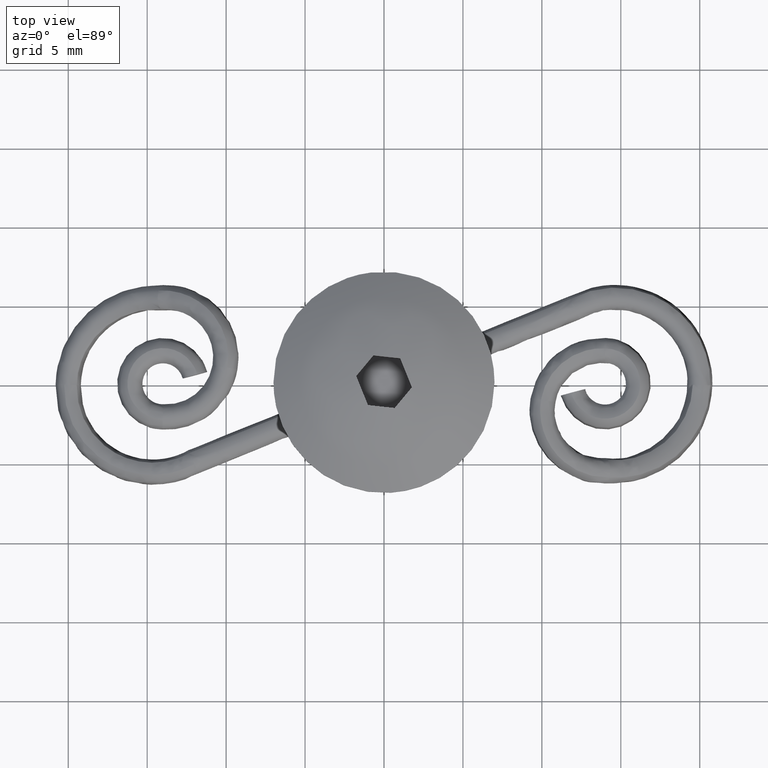
[diagram: clean part render]
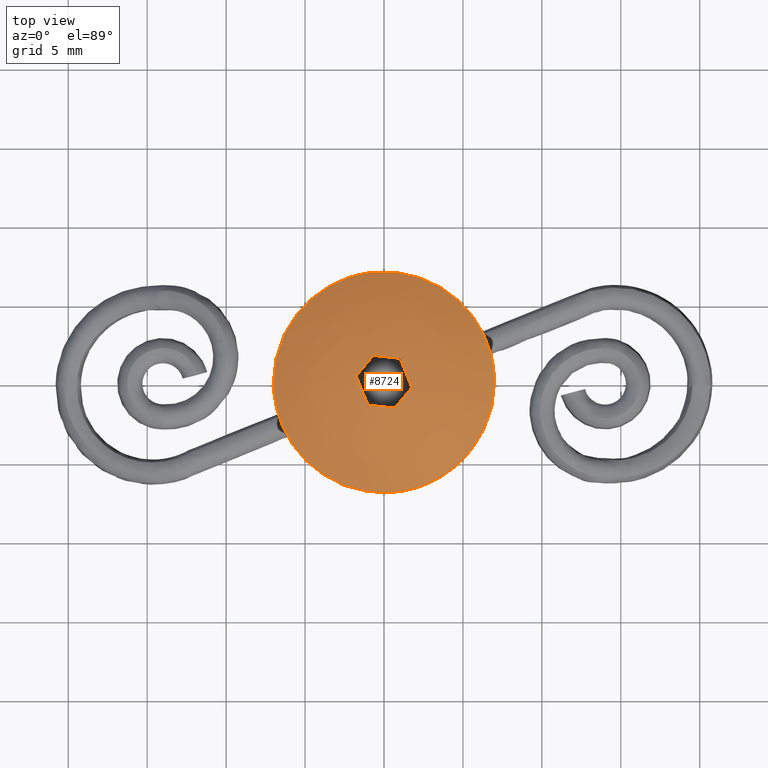
[diagram: same view with one face highlighted and labeled with its STEP entity id]
A machine part, top view. The second image highlights one B-rep face of the part: STEP entity #8724.
In plain terms, the highlighted face is a freeform B-spline surface patch.
Its self-contained STEP definition (entity closure, byte-faithful):
#6360=CARTESIAN_POINT('',(-0.826228462110417,6.951070027576363,8.914991785359719));
#6361=VERTEX_POINT('',#6360);
#6367=CARTESIAN_POINT('',(7.000002000000000,0.0,8.914991785359719));
#6368=VERTEX_POINT('',#6367);
#6369=CARTESIAN_POINT('',(-0.826228462110417,6.951070027576363,8.914991785359719));
#6370=CARTESIAN_POINT('',(-0.414563187388153,7.000002000000000,8.914991785359719));
#6371=CARTESIAN_POINT('',(0.0,7.000002000000000,8.914991785359719));
#6372=CARTESIAN_POINT('',(7.000002000000000,7.000002000000000,8.914991785359719));
#6373=CARTESIAN_POINT('',(7.000002000000000,0.0,8.914991785359719));
#6381=(BOUNDED_CURVE()B_SPLINE_CURVE(2,(#6369,#6370,#6371,#6372,#6373),.UNSPECIFIED.,.F.,.U.)B_SPLINE_CURVE_WITH_KNOTS((3,2,3),(0.229562751089529,0.250000000000000,0.500000000000000),.UNSPECIFIED.)CURVE()GEOMETRIC_REPRESENTATION_ITEM()RATIONAL_B_SPLINE_CURVE((0.956027298244782,0.976056273531682,1.0,0.707106781186548,1.0))REPRESENTATION_ITEM(''));
#6382=EDGE_CURVE('',#6361,#6368,#6381,.T.);
#6384=CARTESIAN_POINT('',(0.427335432959754,-6.986945858364803,8.914991785359719));
#6385=VERTEX_POINT('',#6384);
#6386=CARTESIAN_POINT('',(7.000002000000000,0.0,8.914991785359719));
#6387=CARTESIAN_POINT('',(7.000002000000000,-6.584948566550439,8.914991785359719));
#6388=CARTESIAN_POINT('',(0.427335432959754,-6.986945858364803,8.914991785359719));
#6396=(BOUNDED_CURVE()B_SPLINE_CURVE(2,(#6386,#6387,#6388),.UNSPECIFIED.,.F.,.U.)B_SPLINE_CURVE_WITH_KNOTS((3,3),(0.500000000000000,0.739333072529581),.UNSPECIFIED.)CURVE()GEOMETRIC_REPRESENTATION_ITEM()RATIONAL_B_SPLINE_CURVE((1.0,0.719603864073190,0.976072278040664))REPRESENTATION_ITEM(''));
#6397=EDGE_CURVE('',#6368,#6385,#6396,.T.);
#6475=CARTESIAN_POINT('',(-7.000002000000000,0.0,8.914991785359719));
#6476=VERTEX_POINT('',#6475);
#6477=CARTESIAN_POINT('',(0.427335432959754,-6.986945858364803,8.914991785359719));
#6478=CARTESIAN_POINT('',(0.213867164994148,-7.000002000000000,8.914991785359719));
#6479=CARTESIAN_POINT('',(0.0,-7.000002000000000,8.914991785359719));
#6480=CARTESIAN_POINT('',(-7.000002000000000,-7.000002000000000,8.914991785359719));
#6481=CARTESIAN_POINT('',(-7.000002000000000,0.0,8.914991785359719));
#6489=(BOUNDED_CURVE()B_SPLINE_CURVE(2,(#6477,#6478,#6479,#6480,#6481),.UNSPECIFIED.,.F.,.U.)B_SPLINE_CURVE_WITH_KNOTS((3,2,3),(0.739333072529581,0.750000000000000,1.0),.UNSPECIFIED.)CURVE()GEOMETRIC_REPRESENTATION_ITEM()RATIONAL_B_SPLINE_CURVE((0.976072278040664,0.987502917113358,1.0,0.707106781186548,1.0))REPRESENTATION_ITEM(''));
#6490=EDGE_CURVE('',#6385,#6476,#6489,.T.);
#6492=CARTESIAN_POINT('',(-7.000002000000000,0.0,8.914991785359719));
#6493=CARTESIAN_POINT('',(-7.000002000000000,6.217233741173570,8.914991785359719));
#6494=CARTESIAN_POINT('',(-0.826228462110417,6.951070027576363,8.914991785359719));
#6502=(BOUNDED_CURVE()B_SPLINE_CURVE(2,(#6492,#6493,#6494),.UNSPECIFIED.,.F.,.U.)B_SPLINE_CURVE_WITH_KNOTS((3,3),(0.0,0.229562751089529),.UNSPECIFIED.)CURVE()GEOMETRIC_REPRESENTATION_ITEM()RATIONAL_B_SPLINE_CURVE((1.0,0.731050507654866,0.956027298244782))REPRESENTATION_ITEM(''));
#6503=EDGE_CURVE('',#6476,#6361,#6502,.T.);
#8481=CARTESIAN_POINT('',(1.763513492046960,-0.360631526051891,10.830058453794120));
#8482=VERTEX_POINT('',#8481);
#8483=CARTESIAN_POINT('',(1.018055489983010,1.484440929750002,10.830059619934140));
#8484=VERTEX_POINT('',#8483);
#8485=CARTESIAN_POINT('',(1.763513492046958,-0.360631526051891,10.830058453794120));
#8486=CARTESIAN_POINT('',(1.390784507855683,0.561904660166883,10.906774236152854));
#8487=CARTESIAN_POINT('',(1.018055489983010,1.484440929750002,10.830059619934140));
#8495=(BOUNDED_CURVE()B_SPLINE_CURVE(2,(#8485,#8486,#8487),.UNSPECIFIED.,.F.,.U.)CURVE()GEOMETRIC_REPRESENTATION_ITEM()QUASI_UNIFORM_CURVE()RATIONAL_B_SPLINE_CURVE((1.0,0.997040852602830,1.0))REPRESENTATION_ITEM(''));
#8496=EDGE_CURVE('',#8482,#8484,#8495,.T.);
#8517=CARTESIAN_POINT('',(0.674300932120085,-1.668936240449005,10.830058479196220));
#8518=VERTEX_POINT('',#8517);
#8519=CARTESIAN_POINT('',(0.674300932120084,-1.668936240449005,10.830058479196230));
#8520=CARTESIAN_POINT('',(1.218907212619528,-1.014783882606624,10.886200922787724));
#8521=CARTESIAN_POINT('',(1.763513492046960,-0.360631526051890,10.830058453794120));
#8529=(BOUNDED_CURVE()B_SPLINE_CURVE(2,(#8519,#8520,#8521),.UNSPECIFIED.,.F.,.U.)CURVE()GEOMETRIC_REPRESENTATION_ITEM()QUASI_UNIFORM_CURVE()RATIONAL_B_SPLINE_CURVE((1.0,0.997831829504810,1.0))REPRESENTATION_ITEM(''));
#8530=EDGE_CURVE('',#8518,#8482,#8529,.T.);
#8547=CARTESIAN_POINT('',(-1.018037892914166,-1.484451748694662,10.830059448085001));
#8548=VERTEX_POINT('',#8547);
#8549=CARTESIAN_POINT('',(-1.018037892914166,-1.484451748694662,10.830059448085001));
#8550=CARTESIAN_POINT('',(-0.171868448632149,-1.576693998034574,10.886201417770346));
#8551=CARTESIAN_POINT('',(0.674300932120087,-1.668936240449005,10.830058479196239));
#8559=(BOUNDED_CURVE()B_SPLINE_CURVE(2,(#8549,#8550,#8551),.UNSPECIFIED.,.F.,.U.)CURVE()GEOMETRIC_REPRESENTATION_ITEM()QUASI_UNIFORM_CURVE()RATIONAL_B_SPLINE_CURVE((1.0,0.997831829671320,1.0))REPRESENTATION_ITEM(''));
#8560=EDGE_CURVE('',#8548,#8518,#8559,.T.);
#8577=CARTESIAN_POINT('',(-1.763495894978115,0.360620707107231,10.830060614224900));
#8578=VERTEX_POINT('',#8577);
#8579=CARTESIAN_POINT('',(-1.763495894978114,0.360620707107230,10.830060614224911));
#8580=CARTESIAN_POINT('',(-1.390766877105444,-0.561915562475883,10.906775224532932));
#8581=CARTESIAN_POINT('',(-1.018037892914167,-1.484451748694661,10.830059448084979));
#8589=(BOUNDED_CURVE()B_SPLINE_CURVE(2,(#8579,#8580,#8581),.UNSPECIFIED.,.F.,.U.)CURVE()GEOMETRIC_REPRESENTATION_ITEM()QUASI_UNIFORM_CURVE()RATIONAL_B_SPLINE_CURVE((1.0,0.997040853056798,1.0))REPRESENTATION_ITEM(''));
#8590=EDGE_CURVE('',#8578,#8548,#8589,.T.);
#8607=CARTESIAN_POINT('',(-0.674283335051241,1.668925421504345,10.830060588822819));
#8608=VERTEX_POINT('',#8607);
#8609=CARTESIAN_POINT('',(-0.674283335051243,1.668925421504344,10.830060588822811));
#8610=CARTESIAN_POINT('',(-1.218889614478677,1.014773064949606,10.886203048528007));
#8611=CARTESIAN_POINT('',(-1.763495894978115,0.360620707107232,10.830060614224911));
#8619=(BOUNDED_CURVE()B_SPLINE_CURVE(2,(#8609,#8610,#8611),.UNSPECIFIED.,.F.,.U.)CURVE()GEOMETRIC_REPRESENTATION_ITEM()QUASI_UNIFORM_CURVE()RATIONAL_B_SPLINE_CURVE((1.0,0.997831830219899,1.0))REPRESENTATION_ITEM(''));
#8620=EDGE_CURVE('',#8608,#8578,#8619,.T.);
#8637=CARTESIAN_POINT('',(1.018055489983013,1.484440929750005,10.830059619934159));
#8638=CARTESIAN_POINT('',(0.171886109230777,1.576683172164436,10.886202553545457));
#8639=CARTESIAN_POINT('',(-0.674283335051243,1.668925421504348,10.830060588822830));
#8647=(BOUNDED_CURVE()B_SPLINE_CURVE(2,(#8637,#8638,#8639),.UNSPECIFIED.,.F.,.U.)CURVE()GEOMETRIC_REPRESENTATION_ITEM()QUASI_UNIFORM_CURVE()RATIONAL_B_SPLINE_CURVE((1.0,0.997831830053389,1.0))REPRESENTATION_ITEM(''));
#8648=EDGE_CURVE('',#8484,#8608,#8647,.T.);
#8686=CARTESIAN_POINT('',(-6.929301923910721,-6.929149894437797,6.512816656190219));
#8687=CARTESIAN_POINT('',(-3.787467474600338,-7.574769045602068,8.527008014753285));
#8688=CARTESIAN_POINT('',(3.787468795207897,-7.574769045602070,8.527008995423641));
#8689=CARTESIAN_POINT('',(6.929303800045478,-6.929149873952833,6.512818386451606));
#8690=CARTESIAN_POINT('',(-7.574904415651399,-3.787368974016161,8.526910333462432));
#8691=CARTESIAN_POINT('',(-4.176602967677082,-4.176511156892174,10.954988219929509));
#8692=CARTESIAN_POINT('',(4.176603666368435,-4.176511156892182,10.954989301356710));
#8693=CARTESIAN_POINT('',(7.574905777488302,-3.787368961776190,8.526912218422913));
#8694=CARTESIAN_POINT('',(-7.574904415651399,3.787390196138219,8.526910378289703));
#8695=CARTESIAN_POINT('',(-4.176602967677082,4.176534543685585,10.954988269362660));
#8696=CARTESIAN_POINT('',(4.176603666368435,4.176534543685579,10.954989350789861));
#8697=CARTESIAN_POINT('',(7.574905777488302,3.787390183898159,8.526912263250184));
#8698=CARTESIAN_POINT('',(-6.929295266277445,6.929182191607750,6.512795968307013));
#8699=CARTESIAN_POINT('',(-3.787463496562697,7.574803659564351,8.526983283756389));
#8700=CARTESIAN_POINT('',(3.787464817176614,7.574803659564346,8.526984264425716));
#8701=CARTESIAN_POINT('',(6.929297142417502,6.929182171122692,6.512797698566798));
#8709=(BOUNDED_SURFACE()B_SPLINE_SURFACE(2,2,((#8686,#8690,#8694,#8698),(#8687,#8691,#8695,#8699),(#8688,#8692,#8696,#8700),(#8689,#8693,#8697,#8701)),.UNSPECIFIED.,.F.,.F.,.U.)B_SPLINE_SURFACE_WITH_KNOTS((3,1,3),(3,1,3),(0.0,7.945049147454778,15.890098432698750),(0.0,7.944873755727041,15.889792292942261),.UNSPECIFIED.)GEOMETRIC_REPRESENTATION_ITEM()RATIONAL_B_SPLINE_SURFACE(((1.205490189717794,1.102747363043559,1.102747363043559,1.205491347946304),(1.102742826674235,1.0,1.0,1.102743984902745),(1.102742826674235,1.0,1.0,1.102743984902745),(1.205490193281642,1.102747366607407,1.102747366607407,1.205491351510152)))REPRESENTATION_ITEM('')SURFACE());
#8710=ORIENTED_EDGE('',*,*,#6490,.F.);
#8711=ORIENTED_EDGE('',*,*,#6397,.F.);
#8712=ORIENTED_EDGE('',*,*,#6382,.F.);
#8713=ORIENTED_EDGE('',*,*,#6503,.F.);
#8714=EDGE_LOOP('',(#8710,#8711,#8712,#8713));
#8715=FACE_OUTER_BOUND('',#8714,.T.);
#8716=ORIENTED_EDGE('',*,*,#8648,.F.);
#8717=ORIENTED_EDGE('',*,*,#8496,.F.);
#8718=ORIENTED_EDGE('',*,*,#8530,.F.);
#8719=ORIENTED_EDGE('',*,*,#8560,.F.);
#8720=ORIENTED_EDGE('',*,*,#8590,.F.);
#8721=ORIENTED_EDGE('',*,*,#8620,.F.);
#8722=EDGE_LOOP('',(#8716,#8717,#8718,#8719,#8720,#8721));
#8723=FACE_BOUND('',#8722,.T.);
#8724=ADVANCED_FACE('',(#8715,#8723),#8709,.T.);